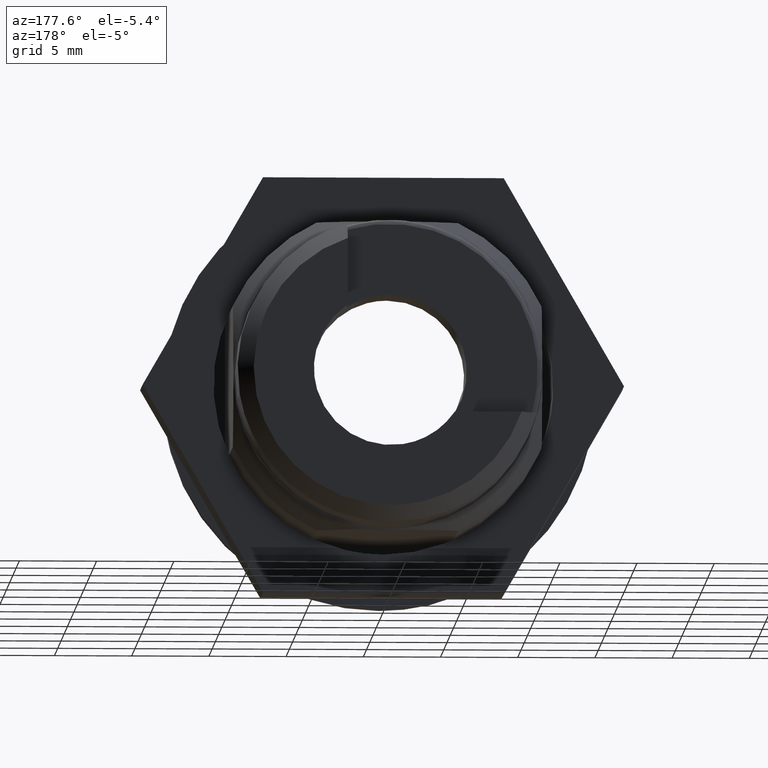
[diagram: clean part render]
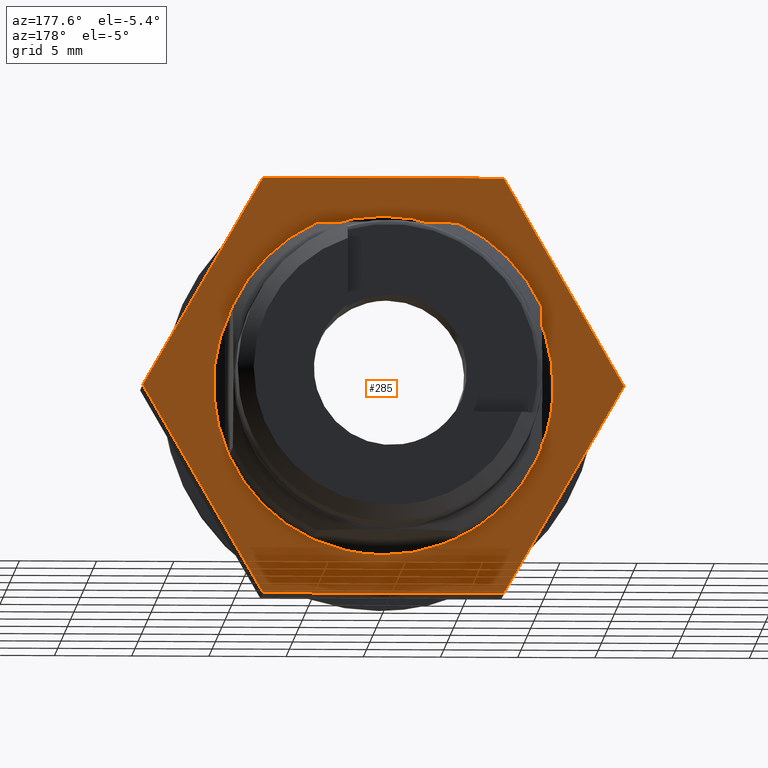
[diagram: same view with one face highlighted and labeled with its STEP entity id]
A machine part, auxiliary view. The second image highlights one B-rep face of the part: STEP entity #285.
In plain terms, the highlighted face is a freeform B-spline surface patch.
Its self-contained STEP definition (entity closure, byte-faithful):
#66=CARTESIAN_POINT('',(6.000000284984731,-10.923105704343859,1.298373315384586));
#67=VERTEX_POINT('',#66);
#68=CARTESIAN_POINT('',(6.000000284984710,0.0,-11.000000522471961));
#69=VERTEX_POINT('',#68);
#70=CARTESIAN_POINT('',(6.000000284984731,-10.923105704343868,1.298373315384586));
#71=CARTESIAN_POINT('',(6.000000284984710,-11.000000522471963,0.651463665770360));
#72=CARTESIAN_POINT('',(6.000000284984710,-11.000000522471961,0.0));
#73=CARTESIAN_POINT('',(6.000000284984709,-11.000000522471961,-11.000000522471961));
#74=CARTESIAN_POINT('',(6.000000284984710,0.0,-11.000000522471961));
#82=(BOUNDED_CURVE()B_SPLINE_CURVE(2,(#70,#71,#72,#73,#74),.UNSPECIFIED.,.F.,.U.)B_SPLINE_CURVE_WITH_KNOTS((3,2,3),(0.229562524999163,0.250000000000000,0.500000000000000),.UNSPECIFIED.)CURVE()GEOMETRIC_REPRESENTATION_ITEM()RATIONAL_B_SPLINE_CURVE((0.956026855097715,0.976056008650342,1.0,0.707106781186548,1.0))REPRESENTATION_ITEM(''));
#83=EDGE_CURVE('',#67,#69,#82,.T.);
#85=CARTESIAN_POINT('',(6.000000284984640,10.979483945612010,-0.671523478607490));
#86=VERTEX_POINT('',#85);
#87=CARTESIAN_POINT('',(6.000000284984710,0.0,-11.000000522471961));
#88=CARTESIAN_POINT('',(6.000000284984709,10.347777130654629,-11.000000522471961));
#89=CARTESIAN_POINT('',(6.000000284984640,10.979483945612007,-0.671523478607490));
#97=(BOUNDED_CURVE()B_SPLINE_CURVE(2,(#87,#88,#89),.UNSPECIFIED.,.F.,.U.)B_SPLINE_CURVE_WITH_KNOTS((3,3),(0.500000000000000,0.739333127067634),.UNSPECIFIED.)CURVE()GEOMETRIC_REPRESENTATION_ITEM()RATIONAL_B_SPLINE_CURVE((1.0,0.719603800177886,0.976072394926234))REPRESENTATION_ITEM(''));
#98=EDGE_CURVE('',#69,#86,#97,.T.);
#165=CARTESIAN_POINT('',(6.000000284984710,0.0,11.000000522471961));
#166=VERTEX_POINT('',#165);
#167=CARTESIAN_POINT('',(6.000000284984710,0.0,11.000000522471961));
#168=CARTESIAN_POINT('',(6.000000284984709,-9.769923246677408,11.000000522471961));
#169=CARTESIAN_POINT('',(6.000000284984731,-10.923105704343868,1.298373315384586));
#177=(BOUNDED_CURVE()B_SPLINE_CURVE(2,(#167,#168,#169),.UNSPECIFIED.,.F.,.U.)B_SPLINE_CURVE_WITH_KNOTS((3,3),(0.0,0.229562524999163),.UNSPECIFIED.)CURVE()GEOMETRIC_REPRESENTATION_ITEM()RATIONAL_B_SPLINE_CURVE((1.0,0.731050772536206,0.956026855097715))REPRESENTATION_ITEM(''));
#178=EDGE_CURVE('',#166,#67,#177,.T.);
#212=CARTESIAN_POINT('',(6.000000284984640,10.979483945612007,-0.671523478607490));
#213=CARTESIAN_POINT('',(6.000000284984710,11.000000522471959,-0.336075153457874));
#214=CARTESIAN_POINT('',(6.000000284984710,11.000000522471961,0.0));
#215=CARTESIAN_POINT('',(6.000000284984709,11.000000522471961,11.000000522471961));
#216=CARTESIAN_POINT('',(6.000000284984710,0.0,11.000000522471961));
#224=(BOUNDED_CURVE()B_SPLINE_CURVE(2,(#212,#213,#214,#215,#216),.UNSPECIFIED.,.F.,.U.)B_SPLINE_CURVE_WITH_KNOTS((3,2,3),(0.739333127067634,0.750000000000000,1.0),.UNSPECIFIED.)CURVE()GEOMETRIC_REPRESENTATION_ITEM()RATIONAL_B_SPLINE_CURVE((0.976072394926234,0.987502981008661,1.0,0.707106781186548,1.0))REPRESENTATION_ITEM(''));
#225=EDGE_CURVE('',#86,#166,#224,.T.);
#230=CARTESIAN_POINT('',(6.000000284984710,-17.145745195824130,14.848651159855191));
#231=CARTESIAN_POINT('',(6.000000284984710,17.145745753310830,14.848651159855191));
#232=CARTESIAN_POINT('',(6.000000284984710,-17.145745195824130,-14.848651401253941));
#233=CARTESIAN_POINT('',(6.000000284984710,17.145745753310830,-14.848651401253941));
#234=B_SPLINE_SURFACE_WITH_KNOTS('',1,1,((#230,#232),(#231,#233)),.UNSPECIFIED.,.F.,.F.,.U.,(2,2),(2,2),(0.0,34.291490949134953),(0.0,29.697302561109129),.UNSPECIFIED.);
#235=CARTESIAN_POINT('',(6.000000284984710,-15.588458008532101,-1.989520E-013));
#236=VERTEX_POINT('',#235);
#237=CARTESIAN_POINT('',(6.000000284984710,-7.794229004265699,13.500000641215600));
#238=VERTEX_POINT('',#237);
#239=CARTESIAN_POINT('',(6.000000284984710,-15.588458008532101,-1.989520E-013));
#240=CARTESIAN_POINT('',(6.000000284984710,-7.794229004265699,13.500000641215600));
#241=QUASI_UNIFORM_CURVE('',1,(#239,#240),.UNSPECIFIED.,.F.,.U.);
#242=EDGE_CURVE('',#236,#238,#241,.T.);
#243=ORIENTED_EDGE('',*,*,#242,.F.);
#244=CARTESIAN_POINT('',(6.000000284984710,-7.794229004266010,-13.500000641215539));
#245=VERTEX_POINT('',#244);
#246=CARTESIAN_POINT('',(6.000000284984710,-7.794229004266010,-13.500000641215539));
#247=CARTESIAN_POINT('',(6.000000284984710,-15.588458008532101,-1.989520E-013));
#248=QUASI_UNIFORM_CURVE('',1,(#246,#247),.UNSPECIFIED.,.F.,.U.);
#249=EDGE_CURVE('',#245,#236,#248,.T.);
#250=ORIENTED_EDGE('',*,*,#249,.F.);
#251=CARTESIAN_POINT('',(6.000000284984710,7.794229004265790,-13.500000641215459));
#252=VERTEX_POINT('',#251);
#253=CARTESIAN_POINT('',(6.000000284984710,7.794229004265790,-13.500000641215459));
#254=CARTESIAN_POINT('',(6.000000284984710,-7.794229004266010,-13.500000641215539));
#255=QUASI_UNIFORM_CURVE('',1,(#253,#254),.UNSPECIFIED.,.F.,.U.);
#256=EDGE_CURVE('',#252,#245,#255,.T.);
#257=ORIENTED_EDGE('',*,*,#256,.F.);
#258=CARTESIAN_POINT('',(6.000000284984710,15.588458008532101,1.989520E-013));
#259=VERTEX_POINT('',#258);
#260=CARTESIAN_POINT('',(6.000000284984710,15.588458008532101,1.989520E-013));
#261=CARTESIAN_POINT('',(6.000000284984710,7.794229004265790,-13.500000641215459));
#262=QUASI_UNIFORM_CURVE('',1,(#260,#261),.UNSPECIFIED.,.F.,.U.);
#263=EDGE_CURVE('',#259,#252,#262,.T.);
#264=ORIENTED_EDGE('',*,*,#263,.F.);
#265=CARTESIAN_POINT('',(6.000000284984710,7.794229004265990,13.500000641215600));
#266=VERTEX_POINT('',#265);
#267=CARTESIAN_POINT('',(6.000000284984710,7.794229004265990,13.500000641215600));
#268=CARTESIAN_POINT('',(6.000000284984710,15.588458008532101,1.989520E-013));
#269=QUASI_UNIFORM_CURVE('',1,(#267,#268),.UNSPECIFIED.,.F.,.U.);
#270=EDGE_CURVE('',#266,#259,#269,.T.);
#271=ORIENTED_EDGE('',*,*,#270,.F.);
#272=CARTESIAN_POINT('',(6.000000284984710,-7.794229004265699,13.500000641215600));
#273=CARTESIAN_POINT('',(6.000000284984710,7.794229004265990,13.500000641215600));
#274=QUASI_UNIFORM_CURVE('',1,(#272,#273),.UNSPECIFIED.,.F.,.U.);
#275=EDGE_CURVE('',#238,#266,#274,.T.);
#276=ORIENTED_EDGE('',*,*,#275,.F.);
#277=EDGE_LOOP('',(#243,#250,#257,#264,#271,#276));
#278=FACE_OUTER_BOUND('',#277,.T.);
#279=ORIENTED_EDGE('',*,*,#98,.F.);
#280=ORIENTED_EDGE('',*,*,#83,.F.);
#281=ORIENTED_EDGE('',*,*,#178,.F.);
#282=ORIENTED_EDGE('',*,*,#225,.F.);
#283=EDGE_LOOP('',(#279,#280,#281,#282));
#284=FACE_BOUND('',#283,.T.);
#285=ADVANCED_FACE('',(#278,#284),#234,.F.);